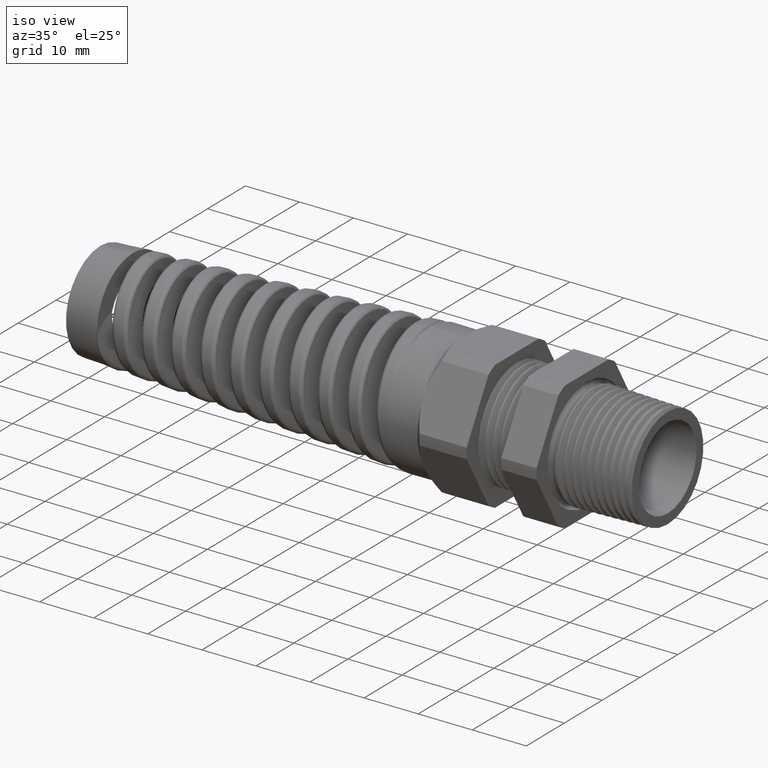
[diagram: clean part render]
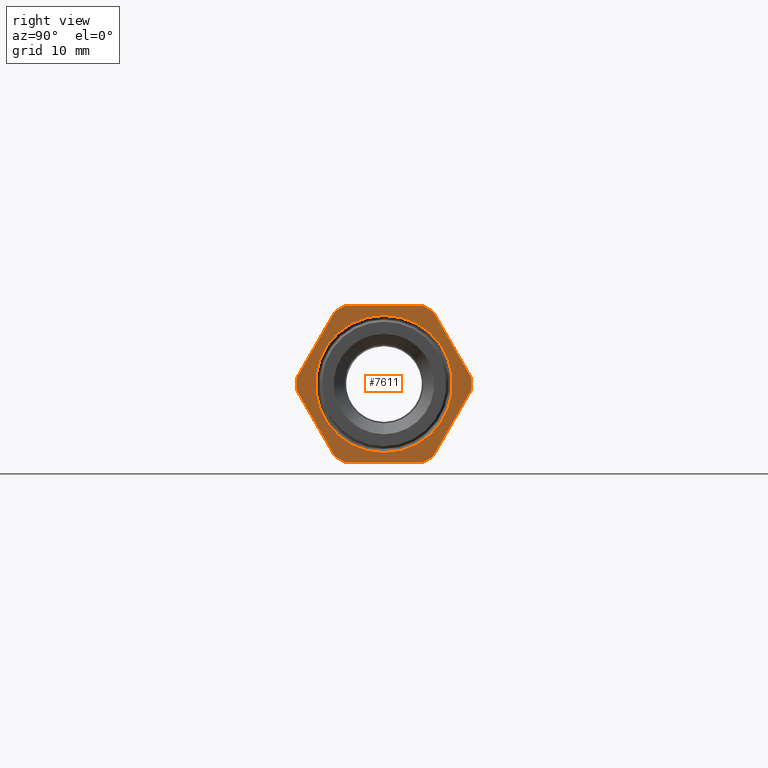
[diagram: tour spotlight — one face highlighted and labeled with its STEP entity id]
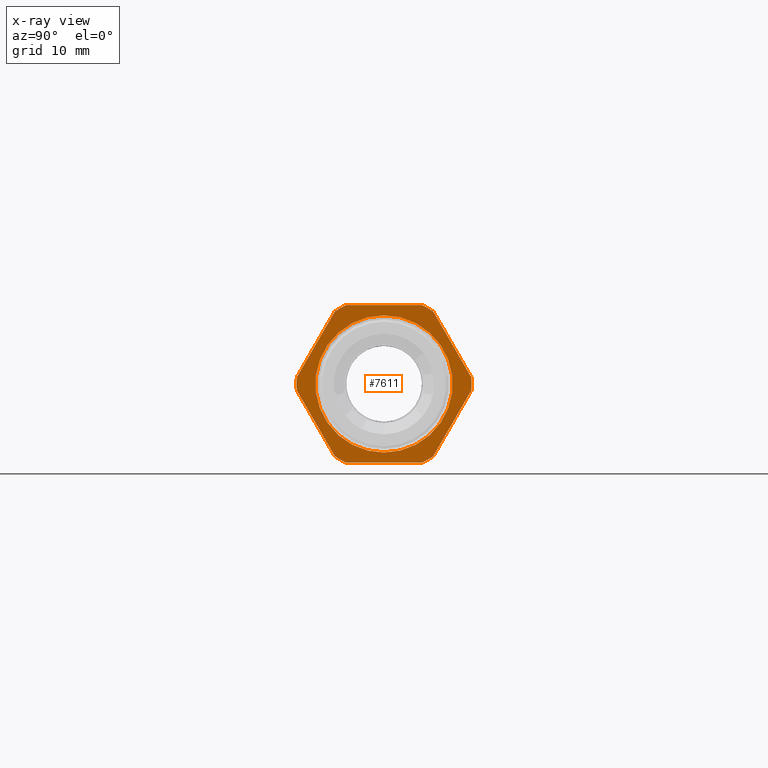
[diagram: x-ray of the same camera — body ghosted, this tour face saturated]
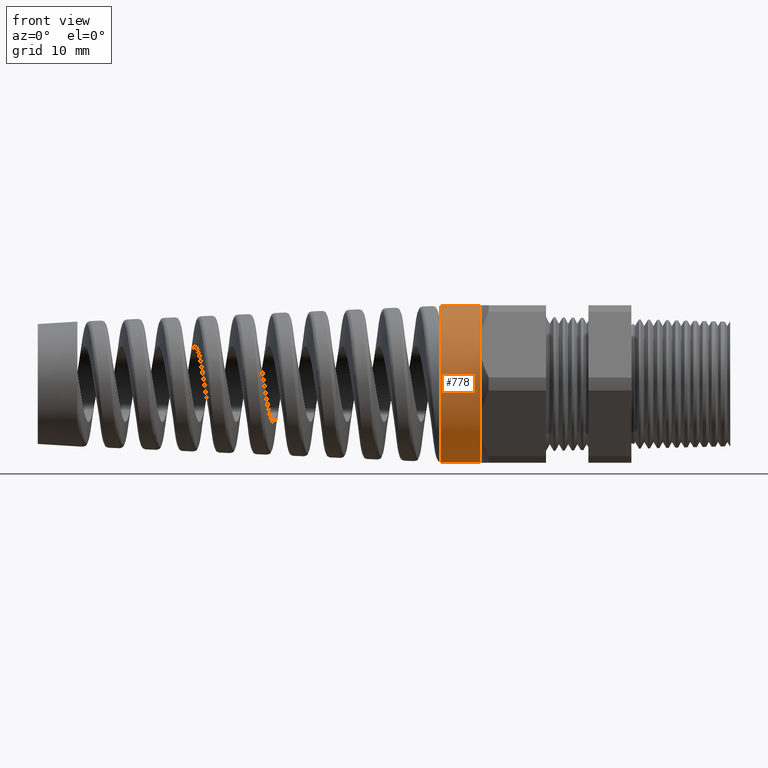
[diagram: tour spotlight — one face highlighted and labeled with its STEP entity id]
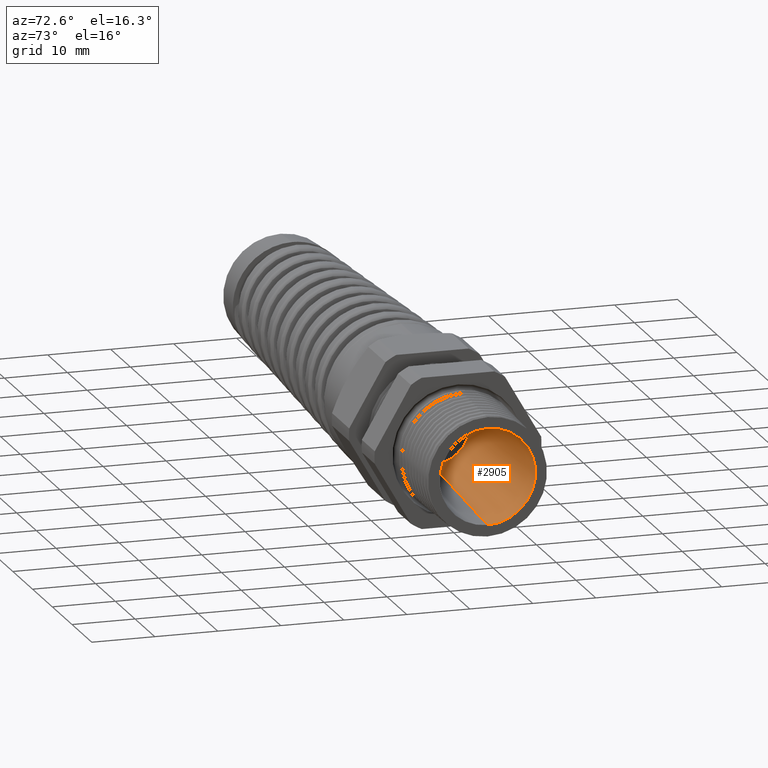
[diagram: tour spotlight — one face highlighted and labeled with its STEP entity id]
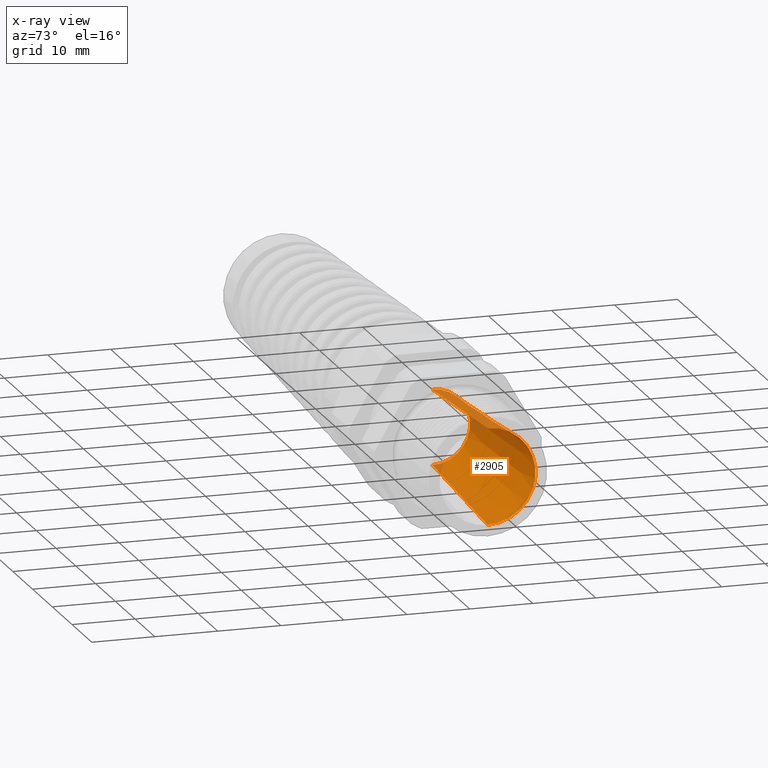
[diagram: x-ray of the same camera — body ghosted, this tour face saturated]
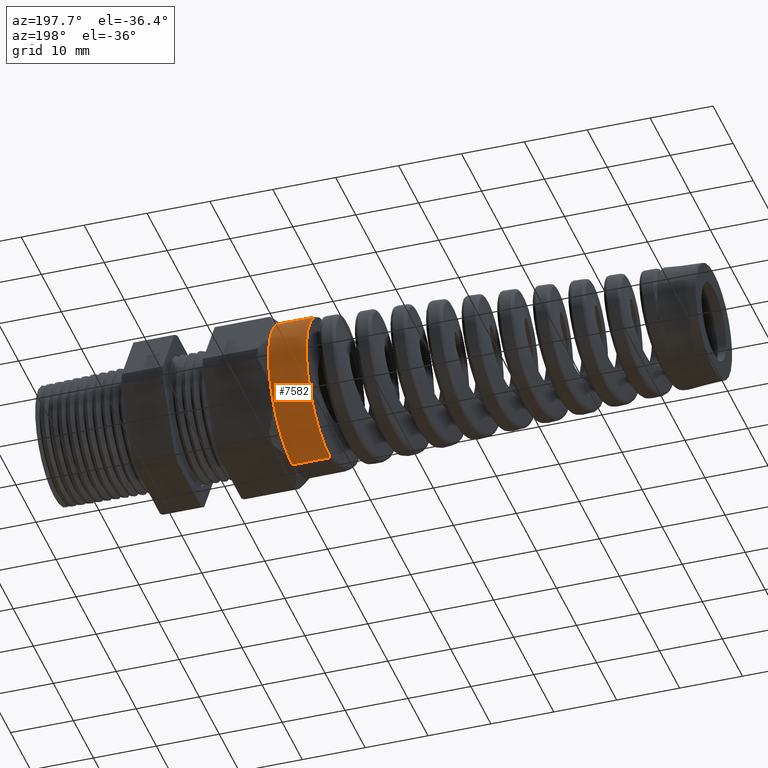
[diagram: tour spotlight — one face highlighted and labeled with its STEP entity id]
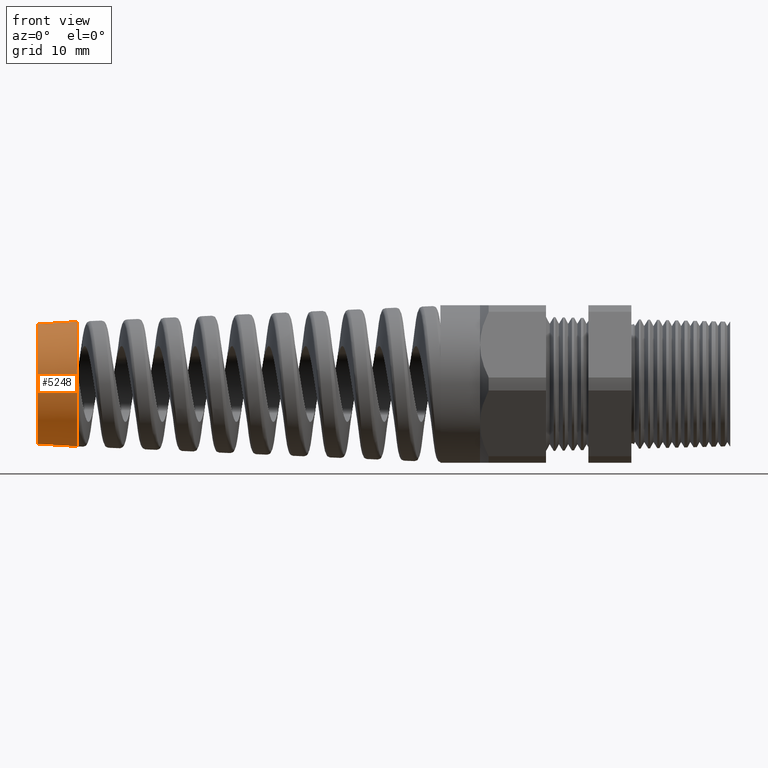
[diagram: tour spotlight — one face highlighted and labeled with its STEP entity id]
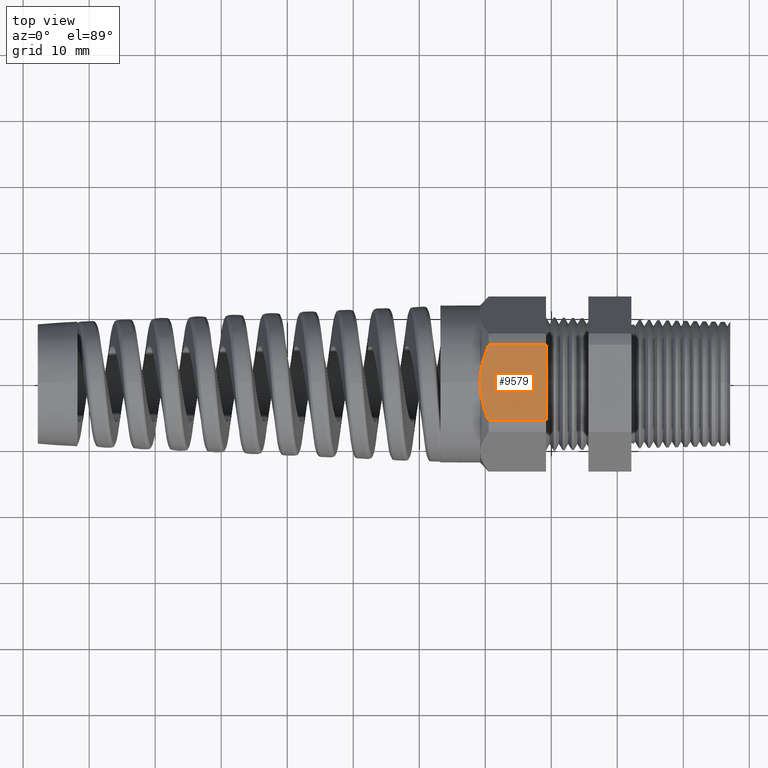
[diagram: tour spotlight — one face highlighted and labeled with its STEP entity id]
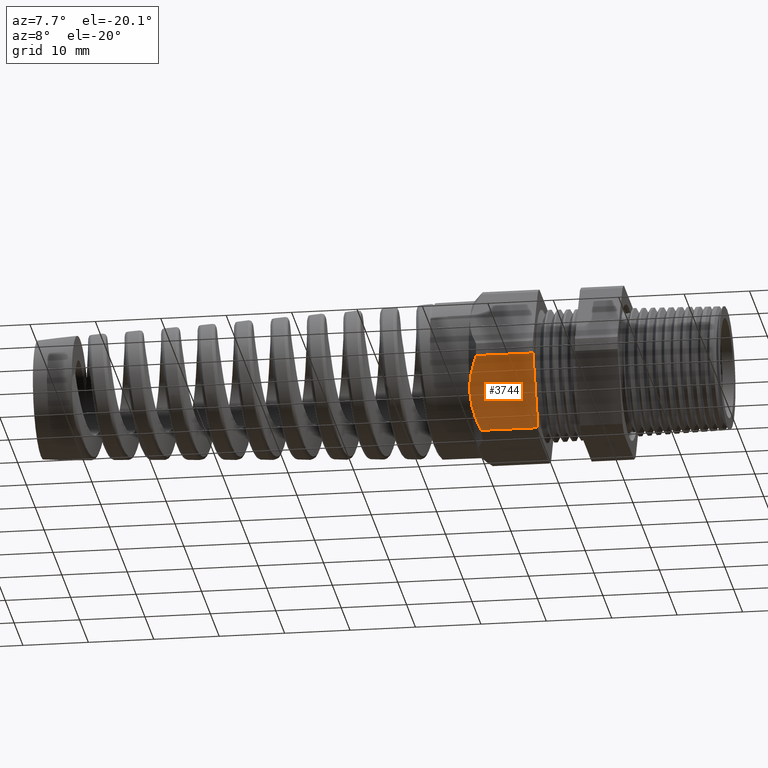
[diagram: tour spotlight — one face highlighted and labeled with its STEP entity id]
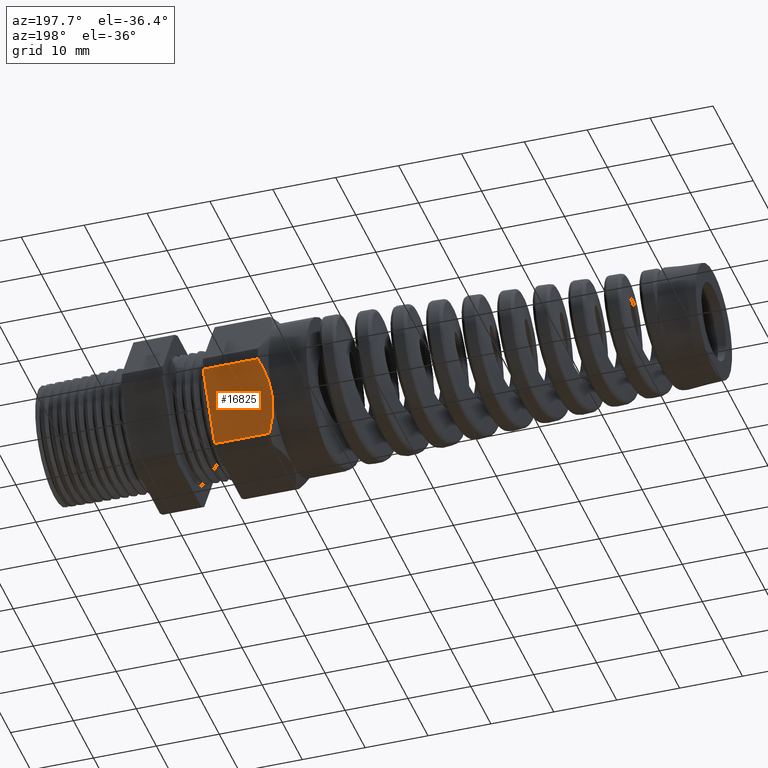
[diagram: tour spotlight — one face highlighted and labeled with its STEP entity id]
A machine part: a face-by-face anatomy tour. The part has 209 B-rep faces; the first image is the clean iso view, then the 8 largest visible faces are spotlighted one at a time (largest first), each with its STEP entity span.

Face 1 — right view, entity #7611. An x-ray twin of the same camera follows (body ghosted, this face saturated) — the face is partly hidden behind the body. In plain terms, the highlighted planar face has unit normal (1, 0, 0).
Definition (entity closure, byte-faithful):
#128 = EDGE_CURVE ( 'NONE', #17480, #17481, #5338, .T. ) ;
#632 = EDGE_CURVE ( 'NONE', #650, #7592, #4224, .T. ) ;
#634 = EDGE_LOOP ( 'NONE', ( #651, #812 ) ) ;
#641 = EDGE_CURVE ( 'NONE', #7585, #17480, #4285, .T. ) ;
#650 = VERTEX_POINT ( 'NONE', #4281 ) ;
#651 = ORIENTED_EDGE ( 'NONE', *, *, #11259, .T. ) ;
#655 = ORIENTED_EDGE ( 'NONE', *, *, #632, .T. ) ;
#782 = ORIENTED_EDGE ( 'NONE', *, *, #784, .T. ) ;
#783 = VERTEX_POINT ( 'NONE', #4309 ) ;
#784 = EDGE_CURVE ( 'NONE', #17479, #783, #4307, .T. ) ;
#785 = ORIENTED_EDGE ( 'NONE', *, *, #786, .T. ) ;
#786 = EDGE_CURVE ( 'NONE', #783, #650, #4308, .T. ) ;
#790 = ORIENTED_EDGE ( 'NONE', *, *, #791, .T. ) ;
#791 = EDGE_CURVE ( 'NONE', #792, #17479, #4297, .T. ) ;
#792 = VERTEX_POINT ( 'NONE', #4293 ) ;
#798 = EDGE_CURVE ( 'NONE', #7395, #792, #4291, .T. ) ;
#810 = EDGE_CURVE ( 'NONE', #10894, #10911, #4381, .T. ) ;
#812 = ORIENTED_EDGE ( 'NONE', *, *, #810, .T. ) ;
#4220 = DIRECTION ( 'NONE',  ( 0.0000000000000000000, 0.0000000000000000000, -1.000000000000000000 ) ) ;
#4221 = DIRECTION ( 'NONE',  ( 1.000000000000000000, 0.0000000000000000000, 0.0000000000000000000 ) ) ;
#4222 = CARTESIAN_POINT ( 'NONE',  ( -0.3100000000000000000, 0.0000000000000000000, 0.0000000000000000000 ) ) ;
#4223 = AXIS2_PLACEMENT_3D ( 'NONE', #4222, #4221, #4220 ) ;
#4224 = CIRCLE ( 'NONE', #4223, 0.5217000000000000500 ) ;
#4281 = CARTESIAN_POINT ( 'NONE',  ( -0.3100000000000000000, 0.2264307620443831200, -0.4700000000000000300 ) ) ;
#4282 = DIRECTION ( 'NONE',  ( 0.0000000000000000000, -0.4999999999999998900, 0.8660254037844386000 ) ) ;
#4283 = VECTOR ( 'NONE', #4282, 39.37007874015748100 ) ;
#4284 = CARTESIAN_POINT ( 'NONE',  ( -0.3100000000000000000, 0.6420319397786862200, -0.1720319397786860800 ) ) ;
#4285 = LINE ( 'NONE', #4284, #4283 ) ;
#4287 = DIRECTION ( 'NONE',  ( 0.0000000000000000000, 0.0000000000000000000, -1.000000000000000000 ) ) ;
#4288 = DIRECTION ( 'NONE',  ( 1.000000000000000000, 0.0000000000000000000, 0.0000000000000000000 ) ) ;
#4289 = CARTESIAN_POINT ( 'NONE',  ( -0.3100000000000000000, 0.0000000000000000000, 0.0000000000000000000 ) ) ;
#4290 = AXIS2_PLACEMENT_3D ( 'NONE', #4289, #4288, #4287 ) ;
#4291 = CIRCLE ( 'NONE', #4290, 0.5217000000000000500 ) ;
#4293 = CARTESIAN_POINT ( 'NONE',  ( -0.3100000000000000000, -0.5202473208008777700, -0.03890520787129508200 ) ) ;
#4294 = DIRECTION ( 'NONE',  ( 0.0000000000000000000, 0.5000000000000004400, -0.8660254037844383700 ) ) ;
#4295 = VECTOR ( 'NONE', #4294, 39.37007874015748100 ) ;
#4296 = CARTESIAN_POINT ( 'NONE',  ( -0.3100000000000000000, -0.1720319397786860300, -0.6420319397786867800 ) ) ;
#4297 = LINE ( 'NONE', #4296, #4295 ) ;
#4300 = DIRECTION ( 'NONE',  ( 0.0000000000000000000, 1.000000000000000000, 0.0000000000000000000 ) ) ;
#4301 = VECTOR ( 'NONE', #4300, 39.37007874015748100 ) ;
#4302 = CARTESIAN_POINT ( 'NONE',  ( -0.3100000000000000000, 0.9399999999999999500, -0.4700000000000000300 ) ) ;
#4303 = DIRECTION ( 'NONE',  ( 0.0000000000000000000, 0.0000000000000000000, -1.000000000000000000 ) ) ;
#4304 = DIRECTION ( 'NONE',  ( 1.000000000000000000, 0.0000000000000000000, 0.0000000000000000000 ) ) ;
#4305 = CARTESIAN_POINT ( 'NONE',  ( -0.3100000000000000000, 0.0000000000000000000, 0.0000000000000000000 ) ) ;
#4306 = AXIS2_PLACEMENT_3D ( 'NONE', #4305, #4304, #4303 ) ;
#4307 = CIRCLE ( 'NONE', #4306, 0.5217000000000000500 ) ;
#4308 = LINE ( 'NONE', #4302, #4301 ) ;
#4309 = CARTESIAN_POINT ( 'NONE',  ( -0.3100000000000000000, -0.2264307620443830900, -0.4700000000000000300 ) ) ;
#4377 = DIRECTION ( 'NONE',  ( 0.0000000000000000000, 0.0000000000000000000, -1.000000000000000000 ) ) ;
#4378 = DIRECTION ( 'NONE',  ( -1.000000000000000000, 0.0000000000000000000, 0.0000000000000000000 ) ) ;
#4379 = CARTESIAN_POINT ( 'NONE',  ( -0.3100000000000000000, 0.0000000000000000000, 0.0000000000000000000 ) ) ;
#4380 = AXIS2_PLACEMENT_3D ( 'NONE', #4379, #4378, #4377 ) ;
#4381 = CIRCLE ( 'NONE', #4380, 0.4091579204208625200 ) ;
#5337 = AXIS2_PLACEMENT_3D ( 'NONE', #5340, #5386, #5385 ) ;
#5338 = CIRCLE ( 'NONE', #5337, 0.5217000000000000500 ) ;
#5340 = CARTESIAN_POINT ( 'NONE',  ( -0.3100000000000000000, 0.0000000000000000000, 0.0000000000000000000 ) ) ;
#5385 = DIRECTION ( 'NONE',  ( 0.0000000000000000000, 0.0000000000000000000, -1.000000000000000000 ) ) ;
#5386 = DIRECTION ( 'NONE',  ( 1.000000000000000000, 0.0000000000000000000, 0.0000000000000000000 ) ) ;
#7393 = ORIENTED_EDGE ( 'NONE', *, *, #798, .T. ) ;
#7395 = VERTEX_POINT ( 'NONE', #11832 ) ;
#7585 = VERTEX_POINT ( 'NONE', #11999 ) ;
#7592 = VERTEX_POINT ( 'NONE', #11991 ) ;
#7596 = VERTEX_POINT ( 'NONE', #11990 ) ;
#7598 = EDGE_CURVE ( 'NONE', #7596, #7585, #11989, .T. ) ;
#7603 = ORIENTED_EDGE ( 'NONE', *, *, #7598, .T. ) ;
#7611 = ADVANCED_FACE ( 'NONE', ( #12031, #12030 ), #12029, .T. ) ;
#7615 = EDGE_LOOP ( 'NONE', ( #7625, #7603, #17251, #17478, #17491, #7699, #7642, #7393, #790, #782, #785, #655 ) ) ;
#7625 = ORIENTED_EDGE ( 'NONE', *, *, #7629, .T. ) ;
#7629 = EDGE_CURVE ( 'NONE', #7592, #7596, #12024, .T. ) ;
#7641 = VERTEX_POINT ( 'NONE', #12012 ) ;
#7642 = ORIENTED_EDGE ( 'NONE', *, *, #7643, .T. ) ;
#7643 = EDGE_CURVE ( 'NONE', #7641, #7395, #12011, .T. ) ;
#7683 = EDGE_CURVE ( 'NONE', #7701, #7641, #12089, .T. ) ;
#7699 = ORIENTED_EDGE ( 'NONE', *, *, #7683, .T. ) ;
#7701 = VERTEX_POINT ( 'NONE', #12085 ) ;
#10894 = VERTEX_POINT ( 'NONE', #12967 ) ;
#10911 = VERTEX_POINT ( 'NONE', #13030 ) ;
#11259 = EDGE_CURVE ( 'NONE', #10911, #10894, #13119, .T. ) ;
#11832 = CARTESIAN_POINT ( 'NONE',  ( -0.3100000000000000000, -0.5202473208008777700, 0.03890520787129464500 ) ) ;
#11985 = DIRECTION ( 'NONE',  ( 0.0000000000000000000, 0.0000000000000000000, -1.000000000000000000 ) ) ;
#11986 = DIRECTION ( 'NONE',  ( 1.000000000000000000, 0.0000000000000000000, 0.0000000000000000000 ) ) ;
#11987 = CARTESIAN_POINT ( 'NONE',  ( -0.3100000000000000000, 0.0000000000000000000, 0.0000000000000000000 ) ) ;
#11988 = AXIS2_PLACEMENT_3D ( 'NONE', #11987, #11986, #11985 ) ;
#11989 = CIRCLE ( 'NONE', #11988, 0.5217000000000000500 ) ;
#11990 = CARTESIAN_POINT ( 'NONE',  ( -0.3100000000000000000, 0.5202473208008777700, -0.03890520787129524800 ) ) ;
#11991 = CARTESIAN_POINT ( 'NONE',  ( -0.3100000000000000000, 0.2938165587564950900, -0.4310947921287046600 ) ) ;
#11999 = CARTESIAN_POINT ( 'NONE',  ( -0.3100000000000000000, 0.5202473208008776600, 0.03890520787129518600 ) ) ;
#12008 = DIRECTION ( 'NONE',  ( 0.0000000000000000000, -0.4999999999999995600, -0.8660254037844389300 ) ) ;
#12009 = VECTOR ( 'NONE', #12008, 39.37007874015748100 ) ;
#12010 = CARTESIAN_POINT ( 'NONE',  ( -0.3100000000000000000, -0.1720319397786868300, 0.6420319397786857800 ) ) ;
#12011 = LINE ( 'NONE', #12010, #12009 ) ;
#12012 = CARTESIAN_POINT ( 'NONE',  ( -0.3100000000000000000, -0.2938165587564948700, 0.4310947921287048800 ) ) ;
#12021 = DIRECTION ( 'NONE',  ( 0.0000000000000000000, 0.4999999999999998300, 0.8660254037844388200 ) ) ;
#12022 = VECTOR ( 'NONE', #12021, 39.37007874015748100 ) ;
#12023 = CARTESIAN_POINT ( 'NONE',  ( -0.3100000000000000000, 0.6420319397786862200, 0.1720319397786859700 ) ) ;
#12024 = LINE ( 'NONE', #12023, #12022 ) ;
#12025 = DIRECTION ( 'NONE',  ( 0.0000000000000000000, 0.0000000000000000000, -1.000000000000000000 ) ) ;
#12026 = DIRECTION ( 'NONE',  ( 1.000000000000000000, 0.0000000000000000000, 0.0000000000000000000 ) ) ;
#12027 = CARTESIAN_POINT ( 'NONE',  ( -0.3100000000000000000, 0.9399999999999999500, 0.0000000000000000000 ) ) ;
#12028 = AXIS2_PLACEMENT_3D ( 'NONE', #12027, #12026, #12025 ) ;
#12029 = PLANE ( 'NONE',  #12028 ) ;
#12030 = FACE_BOUND ( 'NONE', #634, .T. ) ;
#12031 = FACE_OUTER_BOUND ( 'NONE', #7615, .T. ) ;
#12056 = CARTESIAN_POINT ( 'NONE',  ( -0.3100000000000000000, 0.0000000000000000000, 0.0000000000000000000 ) ) ;
#12085 = CARTESIAN_POINT ( 'NONE',  ( -0.3100000000000000000, -0.2264307620443835600, 0.4699999999999997500 ) ) ;
#12086 = DIRECTION ( 'NONE',  ( 0.0000000000000000000, 0.0000000000000000000, -1.000000000000000000 ) ) ;
#12087 = DIRECTION ( 'NONE',  ( 1.000000000000000000, 0.0000000000000000000, 0.0000000000000000000 ) ) ;
#12088 = AXIS2_PLACEMENT_3D ( 'NONE', #12056, #12087, #12086 ) ;
#12089 = CIRCLE ( 'NONE', #12088, 0.5217000000000000500 ) ;
#12967 = CARTESIAN_POINT ( 'NONE',  ( -0.3100000000000000000, 5.010739375891967800E-017, 0.4091579204208624600 ) ) ;
#13030 = CARTESIAN_POINT ( 'NONE',  ( -0.3100000000000000000, 0.0000000000000000000, -0.4091579204208624600 ) ) ;
#13115 = DIRECTION ( 'NONE',  ( 0.0000000000000000000, 0.0000000000000000000, -1.000000000000000000 ) ) ;
#13116 = DIRECTION ( 'NONE',  ( -1.000000000000000000, 0.0000000000000000000, 0.0000000000000000000 ) ) ;
#13117 = CARTESIAN_POINT ( 'NONE',  ( -0.3100000000000000000, 0.0000000000000000000, 0.0000000000000000000 ) ) ;
#13118 = AXIS2_PLACEMENT_3D ( 'NONE', #13117, #13116, #13115 ) ;
#13119 = CIRCLE ( 'NONE', #13118, 0.4091579204208625200 ) ;
#15426 = CARTESIAN_POINT ( 'NONE',  ( -0.3100000000000000000, -0.2938165587564942600, -0.4310947921287053300 ) ) ;
#15448 = DIRECTION ( 'NONE',  ( 0.0000000000000000000, -1.000000000000000000, 0.0000000000000000000 ) ) ;
#15449 = VECTOR ( 'NONE', #15448, 39.37007874015748100 ) ;
#15450 = CARTESIAN_POINT ( 'NONE',  ( -0.3100000000000000000, 0.9399999999999999500, 0.4699999999999999200 ) ) ;
#15451 = LINE ( 'NONE', #15450, #15449 ) ;
#15452 = CARTESIAN_POINT ( 'NONE',  ( -0.3100000000000000000, 0.2264307620443832800, 0.4699999999999999200 ) ) ;
#15453 = CARTESIAN_POINT ( 'NONE',  ( -0.3100000000000000000, 0.2938165587564947600, 0.4310947921287049400 ) ) ;
#17251 = ORIENTED_EDGE ( 'NONE', *, *, #641, .T. ) ;
#17478 = ORIENTED_EDGE ( 'NONE', *, *, #128, .T. ) ;
#17479 = VERTEX_POINT ( 'NONE', #15426 ) ;
#17480 = VERTEX_POINT ( 'NONE', #15453 ) ;
#17481 = VERTEX_POINT ( 'NONE', #15452 ) ;
#17485 = EDGE_CURVE ( 'NONE', #17481, #7701, #15451, .T. ) ;
#17491 = ORIENTED_EDGE ( 'NONE', *, *, #17485, .T. ) ;

Face 2 — front view, entity #778. In plain terms, the highlighted cylindrical surface (partial cylindrical patch) has radius 11.938 mm, axis along (1, 0, 0).
Definition (entity closure, byte-faithful):
#761 = ORIENTED_EDGE ( 'NONE', *, *, #765, .F. ) ;
#762 = ORIENTED_EDGE ( 'NONE', *, *, #7601, .T. ) ;
#765 = EDGE_CURVE ( 'NONE', #3714, #16267, #4280, .T. ) ;
#766 = EDGE_CURVE ( 'NONE', #16267, #7589, #4275, .T. ) ;
#767 = ORIENTED_EDGE ( 'NONE', *, *, #766, .F. ) ;
#771 = EDGE_LOOP ( 'NONE', ( #777, #773, #762, #767, #761, #837 ) ) ;
#772 = EDGE_CURVE ( 'NONE', #7527, #7526, #4266, .T. ) ;
#773 = ORIENTED_EDGE ( 'NONE', *, *, #772, .F. ) ;
#777 = ORIENTED_EDGE ( 'NONE', *, *, #7531, .F. ) ;
#778 = ADVANCED_FACE ( 'NONE', ( #4261 ), #4260, .T. ) ;
#837 = ORIENTED_EDGE ( 'NONE', *, *, #845, .F. ) ;
#845 = EDGE_CURVE ( 'NONE', #7518, #3714, #4393, .T. ) ;
#3714 = VERTEX_POINT ( 'NONE', #6369 ) ;
#4256 = DIRECTION ( 'NONE',  ( 0.0000000000000000000, 0.0000000000000000000, -1.000000000000000000 ) ) ;
#4257 = DIRECTION ( 'NONE',  ( 1.000000000000000000, 0.0000000000000000000, 0.0000000000000000000 ) ) ;
#4258 = CARTESIAN_POINT ( 'NONE',  ( 0.0000000000000000000, 0.0000000000000000000, 0.0000000000000000000 ) ) ;
#4259 = AXIS2_PLACEMENT_3D ( 'NONE', #4258, #4257, #4256 ) ;
#4260 = CYLINDRICAL_SURFACE ( 'NONE', #4259, 0.4699999999999999700 ) ;
#4261 = FACE_OUTER_BOUND ( 'NONE', #771, .T. ) ;
#4262 = DIRECTION ( 'NONE',  ( 0.0000000000000000000, 0.0000000000000000000, 1.000000000000000000 ) ) ;
#4263 = DIRECTION ( 'NONE',  ( -1.000000000000000000, 0.0000000000000000000, 0.0000000000000000000 ) ) ;
#4264 = CARTESIAN_POINT ( 'NONE',  ( -1.448820353894546600, 0.0000000000000000000, 0.0000000000000000000 ) ) ;
#4265 = AXIS2_PLACEMENT_3D ( 'NONE', #4264, #4263, #4262 ) ;
#4266 = CIRCLE ( 'NONE', #4265, 0.4699999999999999200 ) ;
#4271 = DIRECTION ( 'NONE',  ( 0.0000000000000000000, 0.0000000000000000000, -1.000000000000000000 ) ) ;
#4272 = DIRECTION ( 'NONE',  ( 1.000000000000000000, 0.0000000000000000000, 0.0000000000000000000 ) ) ;
#4273 = CARTESIAN_POINT ( 'NONE',  ( -1.212519685039370000, 0.0000000000000000000, 0.0000000000000000000 ) ) ;
#4274 = AXIS2_PLACEMENT_3D ( 'NONE', #4273, #4272, #4271 ) ;
#4275 = CIRCLE ( 'NONE', #4274, 0.4699999999999999700 ) ;
#4276 = DIRECTION ( 'NONE',  ( 0.0000000000000000000, 0.0000000000000000000, -1.000000000000000000 ) ) ;
#4277 = DIRECTION ( 'NONE',  ( 1.000000000000000000, 0.0000000000000000000, 0.0000000000000000000 ) ) ;
#4278 = CARTESIAN_POINT ( 'NONE',  ( -1.212519685039370000, 0.0000000000000000000, 0.0000000000000000000 ) ) ;
#4279 = AXIS2_PLACEMENT_3D ( 'NONE', #4278, #4277, #4276 ) ;
#4280 = CIRCLE ( 'NONE', #4279, 0.4699999999999999700 ) ;
#4385 = DIRECTION ( 'NONE',  ( 0.0000000000000000000, 0.0000000000000000000, -1.000000000000000000 ) ) ;
#4386 = DIRECTION ( 'NONE',  ( 1.000000000000000000, 0.0000000000000000000, 0.0000000000000000000 ) ) ;
#4387 = CARTESIAN_POINT ( 'NONE',  ( -1.212519685039370000, 0.0000000000000000000, 0.0000000000000000000 ) ) ;
#4388 = AXIS2_PLACEMENT_3D ( 'NONE', #4387, #4386, #4385 ) ;
#4393 = CIRCLE ( 'NONE', #4388, 0.4699999999999999700 ) ;
#6369 = CARTESIAN_POINT ( 'NONE',  ( -1.212519685039370000, -0.4070319397786862400, 0.2349999999999997900 ) ) ;
#7518 = VERTEX_POINT ( 'NONE', #11930 ) ;
#7526 = VERTEX_POINT ( 'NONE', #11925 ) ;
#7527 = VERTEX_POINT ( 'NONE', #11924 ) ;
#7531 = EDGE_CURVE ( 'NONE', #7526, #7518, #11917, .T. ) ;
#7589 = VERTEX_POINT ( 'NONE', #11997 ) ;
#7601 = EDGE_CURVE ( 'NONE', #7527, #7589, #11979, .T. ) ;
#11914 = DIRECTION ( 'NONE',  ( 1.000000000000000000, 0.0000000000000000000, 0.0000000000000000000 ) ) ;
#11915 = VECTOR ( 'NONE', #11914, 39.37007874015748100 ) ;
#11916 = CARTESIAN_POINT ( 'NONE',  ( 0.0000000000000000000, 5.755839955992559700E-017, 0.4699999999999999700 ) ) ;
#11917 = LINE ( 'NONE', #11916, #11915 ) ;
#11924 = CARTESIAN_POINT ( 'NONE',  ( -1.448820353894546600, 0.0000000000000000000, -0.4699999999999999200 ) ) ;
#11925 = CARTESIAN_POINT ( 'NONE',  ( -1.448820353894546600, 5.755839955992559700E-017, 0.4699999999999999200 ) ) ;
#11930 = CARTESIAN_POINT ( 'NONE',  ( -1.212519685039370000, 0.0000000000000000000, 0.4699999999999999200 ) ) ;
#11977 = DIRECTION ( 'NONE',  ( 1.000000000000000000, 0.0000000000000000000, 0.0000000000000000000 ) ) ;
#11978 = CARTESIAN_POINT ( 'NONE',  ( 0.0000000000000000000, 0.0000000000000000000, -0.4699999999999999700 ) ) ;
#11979 = LINE ( 'NONE', #11978, #12038 ) ;
#11997 = CARTESIAN_POINT ( 'NONE',  ( -1.212519685039370000, 0.0000000000000000000, -0.4700000000000000300 ) ) ;
#12038 = VECTOR ( 'NONE', #11977, 39.37007874015748100 ) ;
#13885 = CARTESIAN_POINT ( 'NONE',  ( -1.212519685039370000, -0.4070319397786861800, -0.2350000000000002600 ) ) ;
#16267 = VERTEX_POINT ( 'NONE', #13885 ) ;

Face 3 — auxiliary view, entity #2905. An x-ray twin of the same camera follows (body ghosted, this face saturated) — the face is partly hidden behind the body. In plain terms, the highlighted conical surface has half-angle 3.385 deg.
Definition (entity closure, byte-faithful):
#42 = EDGE_CURVE ( 'NONE', #628, #7302, #5345, .T. ) ;
#225 = VERTEX_POINT ( 'NONE', #5378 ) ;
#628 = VERTEX_POINT ( 'NONE', #4225 ) ;
#847 = EDGE_CURVE ( 'NONE', #225, #858, #4384, .T. ) ;
#858 = VERTEX_POINT ( 'NONE', #4440 ) ;
#1510 = EDGE_CURVE ( 'NONE', #858, #7302, #4706, .T. ) ;
#1741 = ORIENTED_EDGE ( 'NONE', *, *, #1510, .T. ) ;
#1745 = ORIENTED_EDGE ( 'NONE', *, *, #847, .T. ) ;
#1746 = ORIENTED_EDGE ( 'NONE', *, *, #1747, .F. ) ;
#1747 = EDGE_CURVE ( 'NONE', #225, #628, #4738, .T. ) ;
#2905 = ADVANCED_FACE ( 'NONE', ( #6242 ), #6240, .F. ) ;
#4225 = CARTESIAN_POINT ( 'NONE',  ( -0.8188188976377951400, 3.275930187719170000E-017, 0.2349999999999999900 ) ) ;
#4382 = VECTOR ( 'NONE', #4446, 39.37007874015748900 ) ;
#4383 = CARTESIAN_POINT ( 'NONE',  ( -0.8188188976377951400, 0.0000000000000000000, -0.2349999999999999900 ) ) ;
#4384 = LINE ( 'NONE', #4383, #4382 ) ;
#4440 = CARTESIAN_POINT ( 'NONE',  ( 0.2800000000000000300, 0.0000000000000000000, -0.3000000000000000400 ) ) ;
#4446 = DIRECTION ( 'NONE',  ( 0.9982549554271934500, 0.0000000000000000000, -0.05905119782910419500 ) ) ;
#4702 = DIRECTION ( 'NONE',  ( 0.0000000000000000000, 0.0000000000000000000, -1.000000000000000000 ) ) ;
#4703 = DIRECTION ( 'NONE',  ( 1.000000000000000000, 0.0000000000000000000, 0.0000000000000000000 ) ) ;
#4704 = CARTESIAN_POINT ( 'NONE',  ( 0.2800000000000000300, 0.0000000000000000000, 0.0000000000000000000 ) ) ;
#4705 = AXIS2_PLACEMENT_3D ( 'NONE', #4704, #4703, #4702 ) ;
#4706 = CIRCLE ( 'NONE', #4705, 0.3000000000000000400 ) ;
#4735 = DIRECTION ( 'NONE',  ( 0.0000000000000000000, 0.0000000000000000000, -1.000000000000000000 ) ) ;
#4736 = DIRECTION ( 'NONE',  ( 1.000000000000000000, 0.0000000000000000000, 0.0000000000000000000 ) ) ;
#4737 = AXIS2_PLACEMENT_3D ( 'NONE', #4744, #4736, #4735 ) ;
#4738 = CIRCLE ( 'NONE', #4737, 0.2349999999999999900 ) ;
#4744 = CARTESIAN_POINT ( 'NONE',  ( -0.8188188976377951400, 0.0000000000000000000, 0.0000000000000000000 ) ) ;
#5342 = DIRECTION ( 'NONE',  ( 0.9982549554271934500, 7.231686040722957200E-018, 0.05905119782910419500 ) ) ;
#5343 = VECTOR ( 'NONE', #5342, 39.37007874015748900 ) ;
#5344 = CARTESIAN_POINT ( 'NONE',  ( -0.8188188976377951400, 2.877919977996279800E-017, 0.2349999999999999900 ) ) ;
#5345 = LINE ( 'NONE', #5344, #5343 ) ;
#5378 = CARTESIAN_POINT ( 'NONE',  ( -0.8188188976377951400, 0.0000000000000000000, -0.2349999999999999900 ) ) ;
#6236 = DIRECTION ( 'NONE',  ( 0.0000000000000000000, 0.0000000000000000000, -1.000000000000000000 ) ) ;
#6237 = DIRECTION ( 'NONE',  ( 1.000000000000000000, 0.0000000000000000000, 0.0000000000000000000 ) ) ;
#6238 = CARTESIAN_POINT ( 'NONE',  ( -0.8188188976377951400, 0.0000000000000000000, 0.0000000000000000000 ) ) ;
#6239 = AXIS2_PLACEMENT_3D ( 'NONE', #6238, #6237, #6236 ) ;
#6240 = CONICAL_SURFACE ( 'NONE', #6239, 0.2349999999999999900, 0.05908557081402044500 ) ;
#6242 = FACE_OUTER_BOUND ( 'NONE', #10041, .T. ) ;
#7302 = VERTEX_POINT ( 'NONE', #11819 ) ;
#10040 = ORIENTED_EDGE ( 'NONE', *, *, #42, .F. ) ;
#10041 = EDGE_LOOP ( 'NONE', ( #10040, #1746, #1745, #1741 ) ) ;
#11819 = CARTESIAN_POINT ( 'NONE',  ( 0.2800000000000000300, 3.673940397442060700E-017, 0.3000000000000000400 ) ) ;

Face 4 — auxiliary view, entity #7582. In plain terms, the highlighted cylindrical surface (partial cylindrical patch) has radius 11.938 mm, axis along (1, 0, 0).
Definition (entity closure, byte-faithful):
#7518 = VERTEX_POINT ( 'NONE', #11930 ) ;
#7520 = ORIENTED_EDGE ( 'NONE', *, *, #7531, .T. ) ;
#7526 = VERTEX_POINT ( 'NONE', #11925 ) ;
#7527 = VERTEX_POINT ( 'NONE', #11924 ) ;
#7531 = EDGE_CURVE ( 'NONE', #7526, #7518, #11917, .T. ) ;
#7574 = EDGE_LOOP ( 'NONE', ( #7580, #7520, #7599, #7609, #7602, #7597 ) ) ;
#7579 = EDGE_CURVE ( 'NONE', #7526, #7527, #11949, .T. ) ;
#7580 = ORIENTED_EDGE ( 'NONE', *, *, #7579, .F. ) ;
#7582 = ADVANCED_FACE ( 'NONE', ( #11945 ), #11944, .T. ) ;
#7588 = VERTEX_POINT ( 'NONE', #11998 ) ;
#7589 = VERTEX_POINT ( 'NONE', #11997 ) ;
#7590 = EDGE_CURVE ( 'NONE', #7589, #7606, #11996, .T. ) ;
#7597 = ORIENTED_EDGE ( 'NONE', *, *, #7601, .F. ) ;
#7599 = ORIENTED_EDGE ( 'NONE', *, *, #7600, .F. ) ;
#7600 = EDGE_CURVE ( 'NONE', #7588, #7518, #11984, .T. ) ;
#7601 = EDGE_CURVE ( 'NONE', #7527, #7589, #11979, .T. ) ;
#7602 = ORIENTED_EDGE ( 'NONE', *, *, #7590, .F. ) ;
#7606 = VERTEX_POINT ( 'NONE', #12037 ) ;
#7608 = EDGE_CURVE ( 'NONE', #7606, #7588, #12036, .T. ) ;
#7609 = ORIENTED_EDGE ( 'NONE', *, *, #7608, .F. ) ;
#11914 = DIRECTION ( 'NONE',  ( 1.000000000000000000, 0.0000000000000000000, 0.0000000000000000000 ) ) ;
#11915 = VECTOR ( 'NONE', #11914, 39.37007874015748100 ) ;
#11916 = CARTESIAN_POINT ( 'NONE',  ( 0.0000000000000000000, 5.755839955992559700E-017, 0.4699999999999999700 ) ) ;
#11917 = LINE ( 'NONE', #11916, #11915 ) ;
#11924 = CARTESIAN_POINT ( 'NONE',  ( -1.448820353894546600, 0.0000000000000000000, -0.4699999999999999200 ) ) ;
#11925 = CARTESIAN_POINT ( 'NONE',  ( -1.448820353894546600, 5.755839955992559700E-017, 0.4699999999999999200 ) ) ;
#11930 = CARTESIAN_POINT ( 'NONE',  ( -1.212519685039370000, 0.0000000000000000000, 0.4699999999999999200 ) ) ;
#11944 = CYLINDRICAL_SURFACE ( 'NONE', #12007, 0.4699999999999999700 ) ;
#11945 = FACE_OUTER_BOUND ( 'NONE', #7574, .T. ) ;
#11946 = DIRECTION ( 'NONE',  ( 0.0000000000000000000, 0.0000000000000000000, 1.000000000000000000 ) ) ;
#11947 = DIRECTION ( 'NONE',  ( -1.000000000000000000, 0.0000000000000000000, 0.0000000000000000000 ) ) ;
#11948 = AXIS2_PLACEMENT_3D ( 'NONE', #11955, #11947, #11946 ) ;
#11949 = CIRCLE ( 'NONE', #11948, 0.4699999999999999200 ) ;
#11955 = CARTESIAN_POINT ( 'NONE',  ( -1.448820353894546600, 0.0000000000000000000, 0.0000000000000000000 ) ) ;
#11977 = DIRECTION ( 'NONE',  ( 1.000000000000000000, 0.0000000000000000000, 0.0000000000000000000 ) ) ;
#11978 = CARTESIAN_POINT ( 'NONE',  ( 0.0000000000000000000, 0.0000000000000000000, -0.4699999999999999700 ) ) ;
#11979 = LINE ( 'NONE', #11978, #12038 ) ;
#11980 = DIRECTION ( 'NONE',  ( 0.0000000000000000000, 0.0000000000000000000, -1.000000000000000000 ) ) ;
#11981 = DIRECTION ( 'NONE',  ( 1.000000000000000000, 0.0000000000000000000, 0.0000000000000000000 ) ) ;
#11982 = CARTESIAN_POINT ( 'NONE',  ( -1.212519685039370000, 0.0000000000000000000, 0.0000000000000000000 ) ) ;
#11983 = AXIS2_PLACEMENT_3D ( 'NONE', #11982, #11981, #11980 ) ;
#11984 = CIRCLE ( 'NONE', #11983, 0.4699999999999999700 ) ;
#11992 = DIRECTION ( 'NONE',  ( 0.0000000000000000000, 0.0000000000000000000, -1.000000000000000000 ) ) ;
#11993 = DIRECTION ( 'NONE',  ( 1.000000000000000000, 0.0000000000000000000, 0.0000000000000000000 ) ) ;
#11994 = CARTESIAN_POINT ( 'NONE',  ( -1.212519685039370000, 0.0000000000000000000, 0.0000000000000000000 ) ) ;
#11995 = AXIS2_PLACEMENT_3D ( 'NONE', #11994, #11993, #11992 ) ;
#11996 = CIRCLE ( 'NONE', #11995, 0.4699999999999999700 ) ;
#11997 = CARTESIAN_POINT ( 'NONE',  ( -1.212519685039370000, 0.0000000000000000000, -0.4700000000000000300 ) ) ;
#11998 = CARTESIAN_POINT ( 'NONE',  ( -1.212519685039370000, 0.4070319397786864000, 0.2350000000000000400 ) ) ;
#12004 = DIRECTION ( 'NONE',  ( 0.0000000000000000000, 0.0000000000000000000, -1.000000000000000000 ) ) ;
#12005 = DIRECTION ( 'NONE',  ( 1.000000000000000000, 0.0000000000000000000, 0.0000000000000000000 ) ) ;
#12006 = CARTESIAN_POINT ( 'NONE',  ( 0.0000000000000000000, 0.0000000000000000000, 0.0000000000000000000 ) ) ;
#12007 = AXIS2_PLACEMENT_3D ( 'NONE', #12006, #12005, #12004 ) ;
#12032 = DIRECTION ( 'NONE',  ( 0.0000000000000000000, 0.0000000000000000000, -1.000000000000000000 ) ) ;
#12033 = DIRECTION ( 'NONE',  ( 1.000000000000000000, 0.0000000000000000000, 0.0000000000000000000 ) ) ;
#12034 = CARTESIAN_POINT ( 'NONE',  ( -1.212519685039370000, 0.0000000000000000000, 0.0000000000000000000 ) ) ;
#12035 = AXIS2_PLACEMENT_3D ( 'NONE', #12034, #12033, #12032 ) ;
#12036 = CIRCLE ( 'NONE', #12035, 0.4699999999999999700 ) ;
#12037 = CARTESIAN_POINT ( 'NONE',  ( -1.212519685039370000, 0.4070319397786865100, -0.2350000000000001000 ) ) ;
#12038 = VECTOR ( 'NONE', #11977, 39.37007874015748100 ) ;

Face 5 — front view, entity #5248. In plain terms, the highlighted conical surface has half-angle 3.5 deg.
Definition (entity closure, byte-faithful):
#111 = CARTESIAN_POINT ( 'NONE',  ( -3.613780000000000200, 0.0000000000000000000, 0.3720344495207377800 ) ) ;
#112 = DIRECTION ( 'NONE',  ( 0.0000000000000000000, 0.0000000000000000000, 1.000000000000000000 ) ) ;
#113 = DIRECTION ( 'NONE',  ( -1.000000000000000000, 0.0000000000000000000, 0.0000000000000000000 ) ) ;
#114 = CARTESIAN_POINT ( 'NONE',  ( -3.613780000000000200, 0.0000000000000000000, 0.0000000000000000000 ) ) ;
#115 = AXIS2_PLACEMENT_3D ( 'NONE', #114, #113, #112 ) ;
#116 = CIRCLE ( 'NONE', #115, 0.3720344495207377800 ) ;
#117 = DIRECTION ( 'NONE',  ( 0.9981347984218669200, -7.476289853398327700E-018, -0.06104853953485701200 ) ) ;
#118 = VECTOR ( 'NONE', #117, 39.37007874015748900 ) ;
#119 = CARTESIAN_POINT ( 'NONE',  ( -3.613780000000000200, -4.556107977781191300E-017, -0.3720344495207377800 ) ) ;
#120 = LINE ( 'NONE', #119, #118 ) ;
#121 = CARTESIAN_POINT ( 'NONE',  ( -3.850000472440945600, 0.0000000000000000000, 0.3575865864930643000 ) ) ;
#311 = DIRECTION ( 'NONE',  ( 0.0000000000000000000, 0.0000000000000000000, 1.000000000000000000 ) ) ;
#312 = DIRECTION ( 'NONE',  ( 1.000000000000000000, 0.0000000000000000000, 0.0000000000000000000 ) ) ;
#313 = CARTESIAN_POINT ( 'NONE',  ( -3.613780000000000200, 0.0000000000000000000, 0.0000000000000000000 ) ) ;
#314 = AXIS2_PLACEMENT_3D ( 'NONE', #313, #312, #311 ) ;
#317 = CONICAL_SURFACE ( 'NONE', #314, 0.3720344495207377800, 0.06108652381980166800 ) ;
#318 = FACE_OUTER_BOUND ( 'NONE', #5249, .T. ) ;
#497 = DIRECTION ( 'NONE',  ( 0.9981347984218669200, 0.0000000000000000000, 0.06104853953485701200 ) ) ;
#498 = VECTOR ( 'NONE', #497, 39.37007874015748900 ) ;
#499 = CARTESIAN_POINT ( 'NONE',  ( -3.613780000000000200, 0.0000000000000000000, 0.3720344495207377800 ) ) ;
#500 = LINE ( 'NONE', #499, #498 ) ;
#5179 = VERTEX_POINT ( 'NONE', #121 ) ;
#5180 = ORIENTED_EDGE ( 'NONE', *, *, #5181, .T. ) ;
#5181 = EDGE_CURVE ( 'NONE', #5252, #10898, #120, .T. ) ;
#5182 = ORIENTED_EDGE ( 'NONE', *, *, #16954, .F. ) ;
#5183 = ORIENTED_EDGE ( 'NONE', *, *, #5184, .T. ) ;
#5184 = EDGE_CURVE ( 'NONE', #16956, #5185, #116, .T. ) ;
#5185 = VERTEX_POINT ( 'NONE', #111 ) ;
#5196 = ORIENTED_EDGE ( 'NONE', *, *, #5197, .F. ) ;
#5197 = EDGE_CURVE ( 'NONE', #5179, #5185, #500, .T. ) ;
#5248 = ADVANCED_FACE ( 'NONE', ( #318 ), #317, .T. ) ;
#5249 = EDGE_LOOP ( 'NONE', ( #5250, #5180, #5182, #5183, #5196 ) ) ;
#5250 = ORIENTED_EDGE ( 'NONE', *, *, #5251, .F. ) ;
#5251 = EDGE_CURVE ( 'NONE', #5252, #5179, #7789, .T. ) ;
#5252 = VERTEX_POINT ( 'NONE', #7784 ) ;
#7784 = CARTESIAN_POINT ( 'NONE',  ( -3.850000472440945600, -4.467640331724391700E-017, -0.3575865864930643000 ) ) ;
#7785 = DIRECTION ( 'NONE',  ( 0.0000000000000000000, 0.0000000000000000000, 1.000000000000000000 ) ) ;
#7786 = DIRECTION ( 'NONE',  ( -1.000000000000000000, 0.0000000000000000000, 0.0000000000000000000 ) ) ;
#7787 = CARTESIAN_POINT ( 'NONE',  ( -3.850000472440945600, 0.0000000000000000000, 0.0000000000000000000 ) ) ;
#7788 = AXIS2_PLACEMENT_3D ( 'NONE', #7787, #7786, #7785 ) ;
#7789 = CIRCLE ( 'NONE', #7788, 0.3575865864930643000 ) ;
#10898 = VERTEX_POINT ( 'NONE', #12956 ) ;
#12956 = CARTESIAN_POINT ( 'NONE',  ( -3.613780000000000200, -4.556107977781191300E-017, -0.3720344495207377800 ) ) ;
#14357 = CARTESIAN_POINT ( 'NONE',  ( -3.613780000000000200, -0.3097289570580025200, -0.2061009577609003400 ) ) ;
#14360 = DIRECTION ( 'NONE',  ( 0.0000000000000000000, 0.0000000000000000000, -1.000000000000000000 ) ) ;
#14362 = DIRECTION ( 'NONE',  ( 1.000000000000000000, 0.0000000000000000000, 0.0000000000000000000 ) ) ;
#14364 = CARTESIAN_POINT ( 'NONE',  ( -3.613780000000000200, 0.0000000000000000000, 0.0000000000000000000 ) ) ;
#14365 = AXIS2_PLACEMENT_3D ( 'NONE', #14364, #14362, #14360 ) ;
#14367 = CIRCLE ( 'NONE', #14365, 0.3720344495207380500 ) ;
#16954 = EDGE_CURVE ( 'NONE', #16956, #10898, #14367, .T. ) ;
#16956 = VERTEX_POINT ( 'NONE', #14357 ) ;

Face 6 — top view, entity #9579. In plain terms, the highlighted planar face has unit normal (0, 0, 1).
Definition (entity closure, byte-faithful):
#818 = VERTEX_POINT ( 'NONE', #4371 ) ;
#4371 = CARTESIAN_POINT ( 'NONE',  ( -1.160819685039370200, 0.2264307620443832800, 0.4699999999999999200 ) ) ;
#7518 = VERTEX_POINT ( 'NONE', #11930 ) ;
#9561 = EDGE_CURVE ( 'NONE', #818, #7518, #12362, .T. ) ;
#9562 = ORIENTED_EDGE ( 'NONE', *, *, #9561, .T. ) ;
#9565 = EDGE_CURVE ( 'NONE', #7518, #9569, #12413, .T. ) ;
#9567 = ORIENTED_EDGE ( 'NONE', *, *, #9565, .T. ) ;
#9568 = EDGE_LOOP ( 'NONE', ( #9570, #9562, #9567, #10037, #9995 ) ) ;
#9569 = VERTEX_POINT ( 'NONE', #12414 ) ;
#9570 = ORIENTED_EDGE ( 'NONE', *, *, #9648, .T. ) ;
#9577 = VERTEX_POINT ( 'NONE', #12427 ) ;
#9579 = ADVANCED_FACE ( 'NONE', ( #12426 ), #12425, .T. ) ;
#9648 = EDGE_CURVE ( 'NONE', #9577, #818, #12470, .T. ) ;
#9983 = VERTEX_POINT ( 'NONE', #12485 ) ;
#9986 = EDGE_CURVE ( 'NONE', #9577, #9983, #12544, .T. ) ;
#9995 = ORIENTED_EDGE ( 'NONE', *, *, #9986, .F. ) ;
#10035 = EDGE_CURVE ( 'NONE', #9983, #9569, #12609, .T. ) ;
#10037 = ORIENTED_EDGE ( 'NONE', *, *, #10035, .F. ) ;
#11930 = CARTESIAN_POINT ( 'NONE',  ( -1.212519685039370000, 0.0000000000000000000, 0.4699999999999999200 ) ) ;
#12350 = CARTESIAN_POINT ( 'NONE',  ( -1.211272925247352200, 0.03924163778662351200, 0.4699999999999999200 ) ) ;
#12351 = CARTESIAN_POINT ( 'NONE',  ( -1.206505384426680000, 0.07782038235249975900, 0.4699999999999999200 ) ) ;
#12352 = CARTESIAN_POINT ( 'NONE',  ( -1.202986906930677800, 0.09688970369981479700, 0.4699999999999999200 ) ) ;
#12353 = CARTESIAN_POINT ( 'NONE',  ( -1.193957968232915800, 0.1346420459264778800, 0.4699999999999997500 ) ) ;
#12354 = CARTESIAN_POINT ( 'NONE',  ( -1.188448686756323300, 0.1533252955870068300, 0.4699999999999997500 ) ) ;
#12355 = CARTESIAN_POINT ( 'NONE',  ( -1.175730508465536900, 0.1903621927138391400, 0.4699999999999999200 ) ) ;
#12356 = CARTESIAN_POINT ( 'NONE',  ( -1.168556414821144300, 0.2086052162099337200, 0.4699999999999998600 ) ) ;
#12357 = CARTESIAN_POINT ( 'NONE',  ( -1.160819685039370200, 0.2264307620443832800, 0.4699999999999999200 ) ) ;
#12362 = B_SPLINE_CURVE_WITH_KNOTS ( 'NONE', 3,
 ( #12357, #12356, #12355, #12354, #12353, #12352, #12351, #12350, #12416, #12415 ),
 .UNSPECIFIED., .F., .F.,
 ( 4, 2, 2, 2, 4 ),
 ( 0.009140358755258091600, 0.01061001397932214200, 0.01207966920338619300, 0.01354932442745024300, 0.01501897965151429600 ),
 .UNSPECIFIED. ) ;
#12405 = CARTESIAN_POINT ( 'NONE',  ( -1.160819685039369900, -0.2264307620443835900, 0.4699999999999999200 ) ) ;
#12406 = CARTESIAN_POINT ( 'NONE',  ( -1.168556565238666500, -0.2086048696456211900, 0.4699999999999999700 ) ) ;
#12407 = CARTESIAN_POINT ( 'NONE',  ( -1.175705272508839300, -0.1904348960138971000, 0.4699999999999999700 ) ) ;
#12408 = CARTESIAN_POINT ( 'NONE',  ( -1.188468258097386900, -0.1532690879941747700, 0.4699999999999999700 ) ) ;
#12409 = CARTESIAN_POINT ( 'NONE',  ( -1.193987294149184000, -0.1345390626635398200, 0.4699999999999997500 ) ) ;
#12410 = CARTESIAN_POINT ( 'NONE',  ( -1.207534503684483800, -0.07783554612607111700, 0.4699999999999999200 ) ) ;
#12411 = CARTESIAN_POINT ( 'NONE',  ( -1.212519685039370500, -0.03934296915062193700, 0.4700000000000000300 ) ) ;
#12412 = CARTESIAN_POINT ( 'NONE',  ( -1.212519685039370000, 0.0000000000000000000, 0.4699999999999999200 ) ) ;
#12413 = B_SPLINE_CURVE_WITH_KNOTS ( 'NONE', 3,
 ( #12412, #12411, #12410, #12409, #12408, #12407, #12406, #12405 ),
 .UNSPECIFIED., .F., .F.,
 ( 4, 2, 2, 4 ),
 ( 0.01501897965151429600, 0.01796263803772296000, 0.01943446723082728800, 0.02090629642393162000 ),
 .UNSPECIFIED. ) ;
#12414 = CARTESIAN_POINT ( 'NONE',  ( -1.160819685039369900, -0.2264307620443835900, 0.4699999999999999200 ) ) ;
#12415 = CARTESIAN_POINT ( 'NONE',  ( -1.212519685039370000, 0.0000000000000000000, 0.4699999999999999200 ) ) ;
#12416 = CARTESIAN_POINT ( 'NONE',  ( -1.212519685039370700, 0.01964242875915812500, 0.4700000000000000300 ) ) ;
#12421 = DIRECTION ( 'NONE',  ( 1.000000000000000000, 0.0000000000000000000, 0.0000000000000000000 ) ) ;
#12422 = DIRECTION ( 'NONE',  ( 0.0000000000000000000, 0.0000000000000000000, 1.000000000000000000 ) ) ;
#12423 = CARTESIAN_POINT ( 'NONE',  ( 0.2800000000000000300, -0.2264307620443832800, 0.4699999999999999200 ) ) ;
#12424 = AXIS2_PLACEMENT_3D ( 'NONE', #12423, #12422, #12421 ) ;
#12425 = PLANE ( 'NONE',  #12424 ) ;
#12426 = FACE_OUTER_BOUND ( 'NONE', #9568, .T. ) ;
#12427 = CARTESIAN_POINT ( 'NONE',  ( -0.8188188976377951400, 0.2264307620443832800, 0.4699999999999999200 ) ) ;
#12467 = DIRECTION ( 'NONE',  ( -1.000000000000000000, 0.0000000000000000000, 0.0000000000000000000 ) ) ;
#12468 = VECTOR ( 'NONE', #12467, 39.37007874015748100 ) ;
#12469 = CARTESIAN_POINT ( 'NONE',  ( 0.2800000000000000300, 0.2264307620443832800, 0.4699999999999999200 ) ) ;
#12470 = LINE ( 'NONE', #12469, #12468 ) ;
#12485 = CARTESIAN_POINT ( 'NONE',  ( -0.8188188976377951400, -0.2264307620443835600, 0.4699999999999997500 ) ) ;
#12541 = DIRECTION ( 'NONE',  ( 0.0000000000000000000, -1.000000000000000000, 0.0000000000000000000 ) ) ;
#12542 = VECTOR ( 'NONE', #12541, 39.37007874015748100 ) ;
#12543 = CARTESIAN_POINT ( 'NONE',  ( -0.8188188976377951400, 0.4000000000000000200, 0.4699999999999999200 ) ) ;
#12544 = LINE ( 'NONE', #12543, #12542 ) ;
#12602 = DIRECTION ( 'NONE',  ( -1.000000000000000000, 0.0000000000000000000, 0.0000000000000000000 ) ) ;
#12603 = VECTOR ( 'NONE', #12602, 39.37007874015748100 ) ;
#12604 = CARTESIAN_POINT ( 'NONE',  ( 0.2800000000000000300, -0.2264307620443835600, 0.4699999999999997500 ) ) ;
#12609 = LINE ( 'NONE', #12604, #12603 ) ;

Face 7 — auxiliary view, entity #3744. In plain terms, the highlighted planar face has unit normal (0, -0.866, -0.5).
Definition (entity closure, byte-faithful):
#3744 = ADVANCED_FACE ( 'NONE', ( #6355 ), #6449, .T. ) ;
#3754 = EDGE_LOOP ( 'NONE', ( #16274, #16264, #16273, #15976, #15958 ) ) ;
#3777 = VERTEX_POINT ( 'NONE', #6432 ) ;
#4111 = VERTEX_POINT ( 'NONE', #16381 ) ;
#4126 = EDGE_CURVE ( 'NONE', #3777, #4111, #16423, .T. ) ;
#6355 = FACE_OUTER_BOUND ( 'NONE', #3754, .T. ) ;
#6432 = CARTESIAN_POINT ( 'NONE',  ( -0.8188188976377951400, -0.5202473208008777700, -0.03890520787129508200 ) ) ;
#6445 = DIRECTION ( 'NONE',  ( 0.0000000000000000000, 0.5000000000000004400, -0.8660254037844383700 ) ) ;
#6446 = DIRECTION ( 'NONE',  ( 0.0000000000000000000, -0.8660254037844383700, -0.5000000000000004400 ) ) ;
#6447 = CARTESIAN_POINT ( 'NONE',  ( 0.2800000000000000300, -0.2938165587564944800, -0.4310947921287051600 ) ) ;
#6448 = AXIS2_PLACEMENT_3D ( 'NONE', #6447, #6446, #6445 ) ;
#6449 = PLANE ( 'NONE',  #6448 ) ;
#13848 = CARTESIAN_POINT ( 'NONE',  ( -0.8188188976377951400, -0.2938165587564942600, -0.4310947921287053300 ) ) ;
#13871 = CARTESIAN_POINT ( 'NONE',  ( -1.210060122264466700, -0.4315793332085023900, -0.1924826673861759500 ) ) ;
#13872 = CARTESIAN_POINT ( 'NONE',  ( -1.206456656993286400, -0.4460993342073095200, -0.1673332879302911700 ) ) ;
#13873 = CARTESIAN_POINT ( 'NONE',  ( -1.202919990934572500, -0.4556379823307484300, -0.1508118647449734900 ) ) ;
#13874 = CARTESIAN_POINT ( 'NONE',  ( -1.189376350521849300, -0.4838883643614173000, -0.1018807677346241900 ) ) ;
#13875 = CARTESIAN_POINT ( 'NONE',  ( -1.176453730715106400, -0.5022367785154773200, -0.07010038218147679500 ) ) ;
#13876 = CARTESIAN_POINT ( 'NONE',  ( -1.160819685039369900, -0.5202473208008778800, -0.03890520787129513000 ) ) ;
#13878 = B_SPLINE_CURVE_WITH_KNOTS ( 'NONE', 3,
 ( #13876, #13875, #13874, #13873, #13872, #13871, #13929, #13928, #13927, #13926 ),
 .UNSPECIFIED., .F., .F.,
 ( 4, 2, 2, 2, 4 ),
 ( 2.483251536701822600E-007, 0.002951677829872995600, 0.004427392582232656700, 0.005165249958412488500, 0.005903107334592319400 ),
 .UNSPECIFIED. ) ;
#13885 = CARTESIAN_POINT ( 'NONE',  ( -1.212519685039370000, -0.4070319397786861800, -0.2350000000000002600 ) ) ;
#13886 = CARTESIAN_POINT ( 'NONE',  ( -1.160819685039369900, -0.2938165587564942600, -0.4310947921287053300 ) ) ;
#13887 = DIRECTION ( 'NONE',  ( -1.000000000000000000, 0.0000000000000000000, 0.0000000000000000000 ) ) ;
#13888 = VECTOR ( 'NONE', #13887, 39.37007874015748100 ) ;
#13889 = CARTESIAN_POINT ( 'NONE',  ( 0.2800000000000000300, -0.2938165587564942600, -0.4310947921287053300 ) ) ;
#13890 = LINE ( 'NONE', #13889, #13888 ) ;
#13894 = DIRECTION ( 'NONE',  ( 0.0000000000000000000, 0.5000000000000004400, -0.8660254037844383700 ) ) ;
#13895 = VECTOR ( 'NONE', #13894, 39.37007874015748100 ) ;
#13896 = CARTESIAN_POINT ( 'NONE',  ( -0.8188188976377951400, -0.3070319397786861500, -0.4082050807568881600 ) ) ;
#13897 = LINE ( 'NONE', #13896, #13895 ) ;
#13909 = CARTESIAN_POINT ( 'NONE',  ( -1.160819685039369900, -0.2938165587564942600, -0.4310947921287053300 ) ) ;
#13910 = CARTESIAN_POINT ( 'NONE',  ( -1.176473094533776900, -0.3118494083116966600, -0.3998609804938488800 ) ) ;
#13911 = CARTESIAN_POINT ( 'NONE',  ( -1.189577968099953400, -0.3304876304616237200, -0.3675786327674197000 ) ) ;
#13912 = CARTESIAN_POINT ( 'NONE',  ( -1.207574016859126000, -0.3682441305491638800, -0.3021824562998216600 ) ) ;
#13913 = CARTESIAN_POINT ( 'NONE',  ( -1.212519685039370000, -0.3874426189162283300, -0.2689296990195461100 ) ) ;
#13914 = CARTESIAN_POINT ( 'NONE',  ( -1.212519685039370000, -0.4070319397786861800, -0.2350000000000002600 ) ) ;
#13915 = B_SPLINE_CURVE_WITH_KNOTS ( 'NONE', 3,
 ( #13914, #13913, #13912, #13911, #13910, #13909 ),
 .UNSPECIFIED., .F., .F.,
 ( 4, 2, 4 ),
 ( 0.005903107334592319400, 0.008852512982428787500, 0.01180191863026525100 ),
 .UNSPECIFIED. ) ;
#13926 = CARTESIAN_POINT ( 'NONE',  ( -1.212519685039370000, -0.4070319397786861800, -0.2350000000000002600 ) ) ;
#13927 = CARTESIAN_POINT ( 'NONE',  ( -1.212519685039370000, -0.4119326305003306900, -0.2265117546779305300 ) ) ;
#13928 = CARTESIAN_POINT ( 'NONE',  ( -1.212209550361684500, -0.4168781440523185400, -0.2179458739363669700 ) ) ;
#13929 = CARTESIAN_POINT ( 'NONE',  ( -1.210977754654245500, -0.4267040029977486900, -0.2009269870148766300 ) ) ;
#15958 = ORIENTED_EDGE ( 'NONE', *, *, #15969, .F. ) ;
#15963 = VERTEX_POINT ( 'NONE', #13848 ) ;
#15969 = EDGE_CURVE ( 'NONE', #3777, #15963, #13897, .T. ) ;
#15976 = ORIENTED_EDGE ( 'NONE', *, *, #15995, .F. ) ;
#15995 = EDGE_CURVE ( 'NONE', #15963, #16004, #13890, .T. ) ;
#16004 = VERTEX_POINT ( 'NONE', #13886 ) ;
#16264 = ORIENTED_EDGE ( 'NONE', *, *, #16269, .T. ) ;
#16267 = VERTEX_POINT ( 'NONE', #13885 ) ;
#16269 = EDGE_CURVE ( 'NONE', #4111, #16267, #13878, .T. ) ;
#16272 = EDGE_CURVE ( 'NONE', #16267, #16004, #13915, .T. ) ;
#16273 = ORIENTED_EDGE ( 'NONE', *, *, #16272, .T. ) ;
#16274 = ORIENTED_EDGE ( 'NONE', *, *, #4126, .T. ) ;
#16381 = CARTESIAN_POINT ( 'NONE',  ( -1.160819685039369900, -0.5202473208008778800, -0.03890520787129513000 ) ) ;
#16416 = DIRECTION ( 'NONE',  ( -1.000000000000000000, 0.0000000000000000000, 0.0000000000000000000 ) ) ;
#16417 = VECTOR ( 'NONE', #16416, 39.37007874015748100 ) ;
#16418 = CARTESIAN_POINT ( 'NONE',  ( 0.2800000000000000300, -0.5202473208008777700, -0.03890520787129508200 ) ) ;
#16423 = LINE ( 'NONE', #16418, #16417 ) ;

Face 8 — auxiliary view, entity #16825. In plain terms, the highlighted planar face has unit normal (0, 0.866, -0.5).
Definition (entity closure, byte-faithful):
#769 = EDGE_CURVE ( 'NONE', #15973, #793, #4270, .T. ) ;
#774 = ORIENTED_EDGE ( 'NONE', *, *, #769, .F. ) ;
#793 = VERTEX_POINT ( 'NONE', #4292 ) ;
#816 = EDGE_CURVE ( 'NONE', #793, #822, #4376, .T. ) ;
#822 = VERTEX_POINT ( 'NONE', #4365 ) ;
#4267 = DIRECTION ( 'NONE',  ( 0.0000000000000000000, 0.4999999999999998300, 0.8660254037844388200 ) ) ;
#4268 = VECTOR ( 'NONE', #4267, 39.37007874015748100 ) ;
#4269 = CARTESIAN_POINT ( 'NONE',  ( -0.8188188976377951400, 0.5070319397786863200, -0.06179491924311231900 ) ) ;
#4270 = LINE ( 'NONE', #4269, #4268 ) ;
#4292 = CARTESIAN_POINT ( 'NONE',  ( -0.8188188976377951400, 0.5202473208008777700, -0.03890520787129524800 ) ) ;
#4365 = CARTESIAN_POINT ( 'NONE',  ( -1.160819685039369900, 0.5202473208008777700, -0.03890520787129524800 ) ) ;
#4373 = DIRECTION ( 'NONE',  ( -1.000000000000000000, 0.0000000000000000000, 0.0000000000000000000 ) ) ;
#4374 = VECTOR ( 'NONE', #4373, 39.37007874015748100 ) ;
#4375 = CARTESIAN_POINT ( 'NONE',  ( 0.2800000000000000300, 0.5202473208008777700, -0.03890520787129524800 ) ) ;
#4376 = LINE ( 'NONE', #4375, #4374 ) ;
#7606 = VERTEX_POINT ( 'NONE', #12037 ) ;
#12037 = CARTESIAN_POINT ( 'NONE',  ( -1.212519685039370000, 0.4070319397786865100, -0.2350000000000001000 ) ) ;
#13891 = CARTESIAN_POINT ( 'NONE',  ( -1.160819685039369900, 0.2938165587564951500, -0.4310947921287046600 ) ) ;
#13892 = CARTESIAN_POINT ( 'NONE',  ( -0.8188188976377951400, 0.2938165587564950900, -0.4310947921287046600 ) ) ;
#13956 = CARTESIAN_POINT ( 'NONE',  ( -1.212519685039370000, 0.4070319397786865100, -0.2350000000000001000 ) ) ;
#13957 = CARTESIAN_POINT ( 'NONE',  ( -1.212519685039369600, 0.4021312490570417300, -0.2434882453220696700 ) ) ;
#13958 = CARTESIAN_POINT ( 'NONE',  ( -1.212209550361684500, 0.3971857355050537600, -0.2520541260636332000 ) ) ;
#13959 = CARTESIAN_POINT ( 'NONE',  ( -1.210977754654245500, 0.3873598765596237800, -0.2690730129851234300 ) ) ;
#13960 = CARTESIAN_POINT ( 'NONE',  ( -1.210060122264466200, 0.3824845463488703000, -0.2775173326138241100 ) ) ;
#13961 = CARTESIAN_POINT ( 'NONE',  ( -1.206456656993286400, 0.3679645453500631800, -0.3026667120697089700 ) ) ;
#13962 = CARTESIAN_POINT ( 'NONE',  ( -1.202919990934572500, 0.3584258972266242700, -0.3191881352550264800 ) ) ;
#13963 = CARTESIAN_POINT ( 'NONE',  ( -1.189376350521849800, 0.3301755151959555000, -0.3681192322653759100 ) ) ;
#13964 = CARTESIAN_POINT ( 'NONE',  ( -1.176453730715106200, 0.3118271010418955900, -0.3998996178185231200 ) ) ;
#13965 = CARTESIAN_POINT ( 'NONE',  ( -1.160819685039369900, 0.2938165587564951500, -0.4310947921287046600 ) ) ;
#13966 = DIRECTION ( 'NONE',  ( 0.0000000000000000000, 0.4999999999999998300, 0.8660254037844388200 ) ) ;
#13967 = DIRECTION ( 'NONE',  ( 0.0000000000000000000, 0.8660254037844388200, -0.4999999999999998300 ) ) ;
#13968 = CARTESIAN_POINT ( 'NONE',  ( 0.2800000000000000300, 0.5202473208008777700, -0.03890520787129524800 ) ) ;
#13969 = AXIS2_PLACEMENT_3D ( 'NONE', #13968, #13967, #13966 ) ;
#13971 = PLANE ( 'NONE',  #13969 ) ;
#13972 = B_SPLINE_CURVE_WITH_KNOTS ( 'NONE', 3,
 ( #13965, #13964, #13963, #13962, #13961, #13960, #13959, #13958, #13957, #13956 ),
 .UNSPECIFIED., .F., .F.,
 ( 4, 2, 2, 2, 4 ),
 ( 2.483251536686118000E-007, 0.002951677829872984800, 0.004427392582232641900, 0.005165249958412472000, 0.005903107334592302100 ),
 .UNSPECIFIED. ) ;
#13973 = FACE_OUTER_BOUND ( 'NONE', #16817, .T. ) ;
#13974 = CARTESIAN_POINT ( 'NONE',  ( -1.160819685039369900, 0.5202473208008777700, -0.03890520787129524800 ) ) ;
#13975 = CARTESIAN_POINT ( 'NONE',  ( -1.176473094533777600, 0.5022144712456754200, -0.07013901950615153400 ) ) ;
#13976 = CARTESIAN_POINT ( 'NONE',  ( -1.189577968099953600, 0.4835762490957485300, -0.1024213672325807700 ) ) ;
#13977 = CARTESIAN_POINT ( 'NONE',  ( -1.207574016859126000, 0.4458197490082085300, -0.1678175437001787600 ) ) ;
#13978 = CARTESIAN_POINT ( 'NONE',  ( -1.212519685039369800, 0.4266212606411441400, -0.2010703009804542300 ) ) ;
#13979 = CARTESIAN_POINT ( 'NONE',  ( -1.212519685039370000, 0.4070319397786865100, -0.2350000000000001000 ) ) ;
#13989 = B_SPLINE_CURVE_WITH_KNOTS ( 'NONE', 3,
 ( #13979, #13978, #13977, #13976, #13975, #13974 ),
 .UNSPECIFIED., .F., .F.,
 ( 4, 2, 4 ),
 ( 0.005903107334592302100, 0.008852512982428761500, 0.01180191863026522000 ),
 .UNSPECIFIED. ) ;
#14008 = DIRECTION ( 'NONE',  ( -1.000000000000000000, 0.0000000000000000000, 0.0000000000000000000 ) ) ;
#14009 = VECTOR ( 'NONE', #14008, 39.37007874015748100 ) ;
#14010 = CARTESIAN_POINT ( 'NONE',  ( 0.2800000000000000300, 0.2938165587564950900, -0.4310947921287046600 ) ) ;
#14011 = LINE ( 'NONE', #14010, #14009 ) ;
#15973 = VERTEX_POINT ( 'NONE', #13892 ) ;
#15986 = VERTEX_POINT ( 'NONE', #13891 ) ;
#16806 = ORIENTED_EDGE ( 'NONE', *, *, #816, .F. ) ;
#16811 = ORIENTED_EDGE ( 'NONE', *, *, #16812, .T. ) ;
#16812 = EDGE_CURVE ( 'NONE', #7606, #822, #13989, .T. ) ;
#16814 = ORIENTED_EDGE ( 'NONE', *, *, #16885, .T. ) ;
#16815 = ORIENTED_EDGE ( 'NONE', *, *, #16816, .T. ) ;
#16816 = EDGE_CURVE ( 'NONE', #15986, #7606, #13972, .T. ) ;
#16817 = EDGE_LOOP ( 'NONE', ( #16814, #16815, #16811, #16806, #774 ) ) ;
#16825 = ADVANCED_FACE ( 'NONE', ( #13973 ), #13971, .T. ) ;
#16885 = EDGE_CURVE ( 'NONE', #15973, #15986, #14011, .T. ) ;